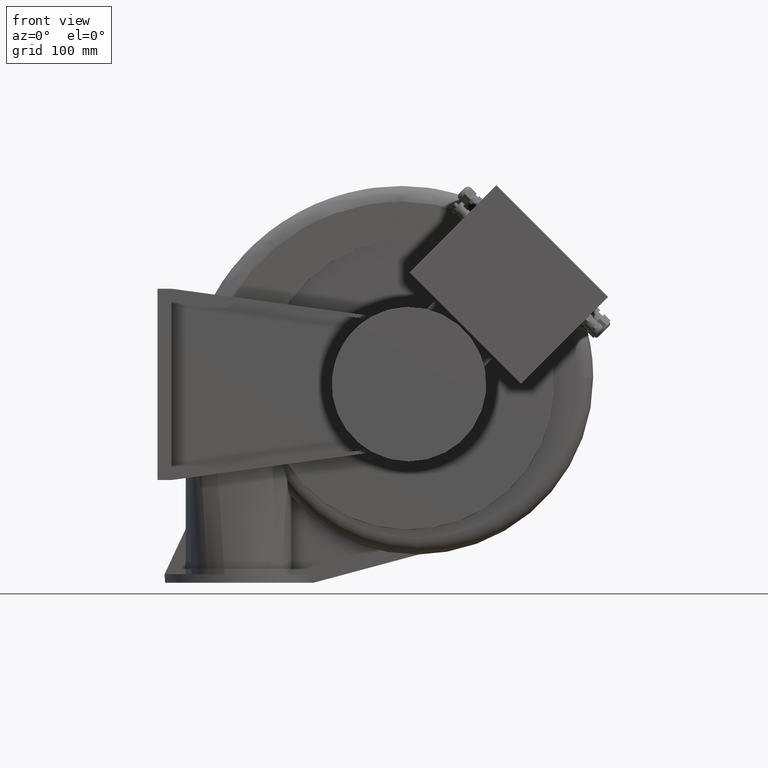
[diagram: clean part render]
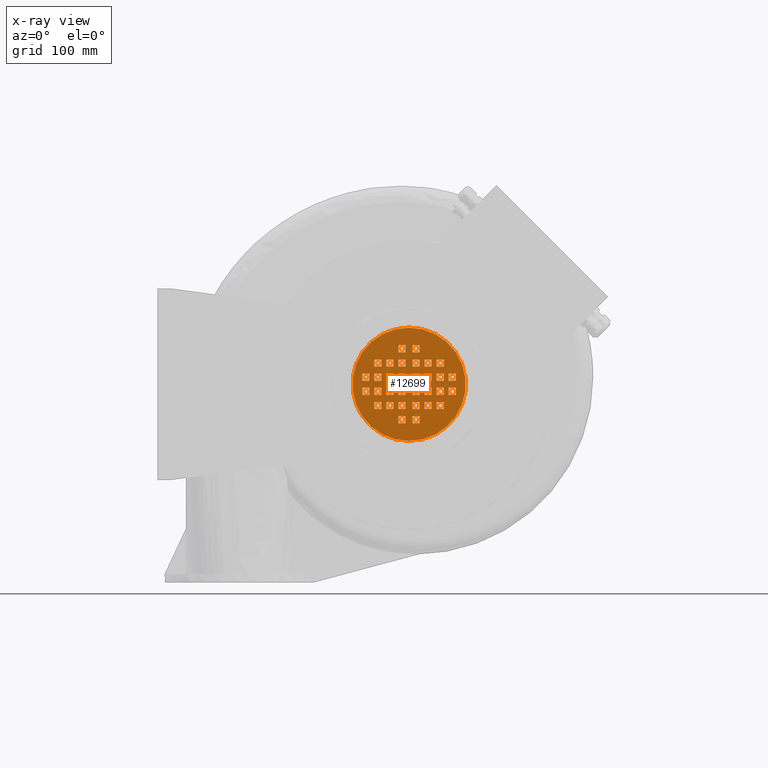
[diagram: x-ray — body ghosted, one internal face saturated and labeled with its STEP entity id]
A machine part, front view, then the same camera in x-ray: the body is ghosted and one INTERNAL B-rep face — a face not visible from any outside direction — is saturated and labeled: STEP entity #12699.
In plain terms, the highlighted planar face has unit normal (0, -1, 0).
Its self-contained STEP definition (entity closure, byte-faithful):
#11588=CARTESIAN_POINT('',(354.99999999999858,234.50000000000023,-54.99999999999973));
#11589=VERTEX_POINT('',#11588);
#11590=CARTESIAN_POINT('',(354.99999999999858,234.5000000000002,-134.99999999999972));
#11591=DIRECTION('',(0.0,1.0,0.0));
#11592=DIRECTION('',(0.0,0.0,-1.0));
#11593=AXIS2_PLACEMENT_3D('',#11590,#11591,#11592);
#11594=CIRCLE('',#11593,80.0);
#11595=EDGE_CURVE('',#11589,#11589,#11594,.T.);
#11603=CARTESIAN_POINT('',(354.99999999999858,234.5000000000002,-134.99999999999972));
#11604=DIRECTION('',(0.0,-1.0,0.0));
#11605=DIRECTION('',(0.0,0.0,-1.0));
#11606=AXIS2_PLACEMENT_3D('',#11603,#11604,#11605);
#11607=PLANE('',#11606);
#11608=ORIENTED_EDGE('',*,*,#11595,.F.);
#11609=EDGE_LOOP('',(#11608));
#11610=FACE_OUTER_BOUND('',#11609,.T.);
#11611=CARTESIAN_POINT('',(339.99999999999858,234.5000000000002,-99.999999999999787));
#11612=VERTEX_POINT('',#11611);
#11613=CARTESIAN_POINT('',(349.99999999999858,234.5000000000002,-99.999999999999787));
#11614=VERTEX_POINT('',#11613);
#11615=CARTESIAN_POINT('',(339.99999999999858,234.5000000000002,-99.999999999999787));
#11616=DIRECTION('',(1.0,0.0,0.0));
#11617=VECTOR('',#11616,10.0);
#11618=LINE('',#11615,#11617);
#11619=EDGE_CURVE('',#11612,#11614,#11618,.T.);
#11620=ORIENTED_EDGE('',*,*,#11619,.T.);
#11621=CARTESIAN_POINT('',(349.99999999999858,234.5000000000002,-109.99999999999979));
#11622=VERTEX_POINT('',#11621);
#11623=CARTESIAN_POINT('',(349.99999999999858,234.5000000000002,-99.999999999999773));
#11624=DIRECTION('',(0.0,0.0,-1.0));
#11625=VECTOR('',#11624,10.0);
#11626=LINE('',#11623,#11625);
#11627=EDGE_CURVE('',#11614,#11622,#11626,.T.);
#11628=ORIENTED_EDGE('',*,*,#11627,.T.);
#11629=CARTESIAN_POINT('',(339.99999999999858,234.5000000000002,-109.99999999999979));
#11630=VERTEX_POINT('',#11629);
#11631=CARTESIAN_POINT('',(349.99999999999858,234.5000000000002,-109.99999999999979));
#11632=DIRECTION('',(-1.0,0.0,0.0));
#11633=VECTOR('',#11632,10.0);
#11634=LINE('',#11631,#11633);
#11635=EDGE_CURVE('',#11622,#11630,#11634,.T.);
#11636=ORIENTED_EDGE('',*,*,#11635,.T.);
#11637=CARTESIAN_POINT('',(339.99999999999858,234.5000000000002,-109.99999999999977));
#11638=DIRECTION('',(0.0,0.0,1.0));
#11639=VECTOR('',#11638,10.0);
#11640=LINE('',#11637,#11639);
#11641=EDGE_CURVE('',#11630,#11612,#11640,.T.);
#11642=ORIENTED_EDGE('',*,*,#11641,.T.);
#11643=EDGE_LOOP('',(#11620,#11628,#11636,#11642));
#11644=FACE_BOUND('',#11643,.T.);
#11645=CARTESIAN_POINT('',(305.99999999999858,234.50000000000017,-119.9999999999998));
#11646=VERTEX_POINT('',#11645);
#11647=CARTESIAN_POINT('',(315.99999999999858,234.50000000000017,-119.99999999999979));
#11648=VERTEX_POINT('',#11647);
#11649=CARTESIAN_POINT('',(305.99999999999852,234.50000000000017,-119.99999999999979));
#11650=DIRECTION('',(1.0,0.0,0.0));
#11651=VECTOR('',#11650,10.0);
#11652=LINE('',#11649,#11651);
#11653=EDGE_CURVE('',#11646,#11648,#11652,.T.);
#11654=ORIENTED_EDGE('',*,*,#11653,.T.);
#11655=CARTESIAN_POINT('',(315.99999999999858,234.50000000000017,-129.99999999999977));
#11656=VERTEX_POINT('',#11655);
#11657=CARTESIAN_POINT('',(315.99999999999858,234.50000000000017,-119.99999999999977));
#11658=DIRECTION('',(0.0,0.0,-1.0));
#11659=VECTOR('',#11658,10.0);
#11660=LINE('',#11657,#11659);
#11661=EDGE_CURVE('',#11648,#11656,#11660,.T.);
#11662=ORIENTED_EDGE('',*,*,#11661,.T.);
#11663=CARTESIAN_POINT('',(305.99999999999858,234.50000000000017,-129.9999999999998));
#11664=VERTEX_POINT('',#11663);
#11665=CARTESIAN_POINT('',(315.99999999999852,234.50000000000017,-129.99999999999977));
#11666=DIRECTION('',(-1.0,0.0,0.0));
#11667=VECTOR('',#11666,10.0);
#11668=LINE('',#11665,#11667);
#11669=EDGE_CURVE('',#11656,#11664,#11668,.T.);
#11670=ORIENTED_EDGE('',*,*,#11669,.T.);
#11671=CARTESIAN_POINT('',(305.99999999999858,234.50000000000017,-129.9999999999998));
#11672=DIRECTION('',(0.0,0.0,1.0));
#11673=VECTOR('',#11672,10.0);
#11674=LINE('',#11671,#11673);
#11675=EDGE_CURVE('',#11664,#11646,#11674,.T.);
#11676=ORIENTED_EDGE('',*,*,#11675,.T.);
#11677=EDGE_LOOP('',(#11654,#11662,#11670,#11676));
#11678=FACE_BOUND('',#11677,.T.);
#11679=CARTESIAN_POINT('',(298.99999999999858,234.50000000000017,-129.9999999999998));
#11680=VERTEX_POINT('',#11679);
#11681=CARTESIAN_POINT('',(288.99999999999858,234.50000000000017,-129.9999999999998));
#11682=VERTEX_POINT('',#11681);
#11683=CARTESIAN_POINT('',(298.99999999999864,234.50000000000017,-129.99999999999977));
#11684=DIRECTION('',(-1.0,0.0,0.0));
#11685=VECTOR('',#11684,10.0);
#11686=LINE('',#11683,#11685);
#11687=EDGE_CURVE('',#11680,#11682,#11686,.T.);
#11688=ORIENTED_EDGE('',*,*,#11687,.T.);
#11689=CARTESIAN_POINT('',(288.99999999999858,234.50000000000017,-119.9999999999998));
#11690=VERTEX_POINT('',#11689);
#11691=CARTESIAN_POINT('',(288.99999999999858,234.50000000000017,-129.9999999999998));
#11692=DIRECTION('',(0.0,0.0,1.0));
#11693=VECTOR('',#11692,10.0);
#11694=LINE('',#11691,#11693);
#11695=EDGE_CURVE('',#11682,#11690,#11694,.T.);
#11696=ORIENTED_EDGE('',*,*,#11695,.T.);
#11697=CARTESIAN_POINT('',(298.99999999999858,234.50000000000017,-119.9999999999998));
#11698=VERTEX_POINT('',#11697);
#11699=CARTESIAN_POINT('',(288.99999999999864,234.50000000000014,-119.9999999999998));
#11700=DIRECTION('',(1.0,0.0,0.0));
#11701=VECTOR('',#11700,10.0);
#11702=LINE('',#11699,#11701);
#11703=EDGE_CURVE('',#11690,#11698,#11702,.T.);
#11704=ORIENTED_EDGE('',*,*,#11703,.T.);
#11705=CARTESIAN_POINT('',(298.99999999999858,234.50000000000017,-119.9999999999998));
#11706=DIRECTION('',(0.0,0.0,-1.0));
#11707=VECTOR('',#11706,10.0);
#11708=LINE('',#11705,#11707);
#11709=EDGE_CURVE('',#11698,#11680,#11708,.T.);
#11710=ORIENTED_EDGE('',*,*,#11709,.T.);
#11711=EDGE_LOOP('',(#11688,#11696,#11704,#11710));
#11712=FACE_BOUND('',#11711,.T.);
#11713=CARTESIAN_POINT('',(339.99999999999858,234.5000000000002,-119.99999999999979));
#11714=VERTEX_POINT('',#11713);
#11715=CARTESIAN_POINT('',(349.99999999999858,234.5000000000002,-119.99999999999979));
#11716=VERTEX_POINT('',#11715);
#11717=CARTESIAN_POINT('',(339.99999999999858,234.5000000000002,-119.99999999999979));
#11718=DIRECTION('',(1.0,0.0,0.0));
#11719=VECTOR('',#11718,10.0);
#11720=LINE('',#11717,#11719);
#11721=EDGE_CURVE('',#11714,#11716,#11720,.T.);
#11722=ORIENTED_EDGE('',*,*,#11721,.T.);
#11723=CARTESIAN_POINT('',(349.99999999999858,234.5000000000002,-129.99999999999977));
#11724=VERTEX_POINT('',#11723);
#11725=CARTESIAN_POINT('',(349.99999999999858,234.5000000000002,-119.99999999999977));
#11726=DIRECTION('',(0.0,0.0,-1.0));
#11727=VECTOR('',#11726,10.0);
#11728=LINE('',#11725,#11727);
#11729=EDGE_CURVE('',#11716,#11724,#11728,.T.);
#11730=ORIENTED_EDGE('',*,*,#11729,.T.);
#11731=CARTESIAN_POINT('',(339.99999999999858,234.5000000000002,-129.99999999999977));
#11732=VERTEX_POINT('',#11731);
#11733=CARTESIAN_POINT('',(349.99999999999858,234.5000000000002,-129.99999999999977));
#11734=DIRECTION('',(-1.0,0.0,0.0));
#11735=VECTOR('',#11734,10.0);
#11736=LINE('',#11733,#11735);
#11737=EDGE_CURVE('',#11724,#11732,#11736,.T.);
#11738=ORIENTED_EDGE('',*,*,#11737,.T.);
#11739=CARTESIAN_POINT('',(339.99999999999858,234.5000000000002,-129.99999999999977));
#11740=DIRECTION('',(0.0,0.0,1.0));
#11741=VECTOR('',#11740,10.0);
#11742=LINE('',#11739,#11741);
#11743=EDGE_CURVE('',#11732,#11714,#11742,.T.);
#11744=ORIENTED_EDGE('',*,*,#11743,.T.);
#11745=EDGE_LOOP('',(#11722,#11730,#11738,#11744));
#11746=FACE_BOUND('',#11745,.T.);
#11747=CARTESIAN_POINT('',(305.99999999999858,234.50000000000017,-99.999999999999787));
#11748=VERTEX_POINT('',#11747);
#11749=CARTESIAN_POINT('',(315.99999999999858,234.50000000000017,-99.999999999999787));
#11750=VERTEX_POINT('',#11749);
#11751=CARTESIAN_POINT('',(305.99999999999852,234.50000000000017,-99.999999999999787));
#11752=DIRECTION('',(1.0,0.0,0.0));
#11753=VECTOR('',#11752,10.0);
#11754=LINE('',#11751,#11753);
#11755=EDGE_CURVE('',#11748,#11750,#11754,.T.);
#11756=ORIENTED_EDGE('',*,*,#11755,.T.);
#11757=CARTESIAN_POINT('',(315.99999999999858,234.50000000000017,-109.99999999999979));
#11758=VERTEX_POINT('',#11757);
#11759=CARTESIAN_POINT('',(315.99999999999858,234.50000000000017,-99.999999999999801));
#11760=DIRECTION('',(0.0,0.0,-1.0));
#11761=VECTOR('',#11760,10.0);
#11762=LINE('',#11759,#11761);
#11763=EDGE_CURVE('',#11750,#11758,#11762,.T.);
#11764=ORIENTED_EDGE('',*,*,#11763,.T.);
#11765=CARTESIAN_POINT('',(305.99999999999858,234.50000000000017,-109.99999999999979));
#11766=VERTEX_POINT('',#11765);
#11767=CARTESIAN_POINT('',(315.99999999999852,234.50000000000017,-109.99999999999979));
#11768=DIRECTION('',(-1.0,0.0,0.0));
#11769=VECTOR('',#11768,10.0);
#11770=LINE('',#11767,#11769);
#11771=EDGE_CURVE('',#11758,#11766,#11770,.T.);
#11772=ORIENTED_EDGE('',*,*,#11771,.T.);
#11773=CARTESIAN_POINT('',(305.99999999999858,234.50000000000017,-109.9999999999998));
#11774=DIRECTION('',(0.0,0.0,1.0));
#11775=VECTOR('',#11774,10.0);
#11776=LINE('',#11773,#11775);
#11777=EDGE_CURVE('',#11766,#11748,#11776,.T.);
#11778=ORIENTED_EDGE('',*,*,#11777,.T.);
#11779=EDGE_LOOP('',(#11756,#11764,#11772,#11778));
#11780=FACE_BOUND('',#11779,.T.);
#11781=CARTESIAN_POINT('',(322.99999999999852,234.5000000000002,-99.999999999999787));
#11782=VERTEX_POINT('',#11781);
#11783=CARTESIAN_POINT('',(332.99999999999852,234.5000000000002,-99.999999999999787));
#11784=VERTEX_POINT('',#11783);
#11785=CARTESIAN_POINT('',(322.99999999999858,234.5000000000002,-99.999999999999787));
#11786=DIRECTION('',(1.0,0.0,0.0));
#11787=VECTOR('',#11786,10.0);
#11788=LINE('',#11785,#11787);
#11789=EDGE_CURVE('',#11782,#11784,#11788,.T.);
#11790=ORIENTED_EDGE('',*,*,#11789,.T.);
#11791=CARTESIAN_POINT('',(332.99999999999852,234.5000000000002,-109.99999999999979));
#11792=VERTEX_POINT('',#11791);
#11793=CARTESIAN_POINT('',(332.99999999999852,234.5000000000002,-99.999999999999773));
#11794=DIRECTION('',(0.0,0.0,-1.0));
#11795=VECTOR('',#11794,10.0);
#11796=LINE('',#11793,#11795);
#11797=EDGE_CURVE('',#11784,#11792,#11796,.T.);
#11798=ORIENTED_EDGE('',*,*,#11797,.T.);
#11799=CARTESIAN_POINT('',(322.99999999999852,234.5000000000002,-109.99999999999979));
#11800=VERTEX_POINT('',#11799);
#11801=CARTESIAN_POINT('',(332.99999999999858,234.5000000000002,-109.99999999999979));
#11802=DIRECTION('',(-1.0,0.0,0.0));
#11803=VECTOR('',#11802,10.0);
#11804=LINE('',#11801,#11803);
#11805=EDGE_CURVE('',#11792,#11800,#11804,.T.);
#11806=ORIENTED_EDGE('',*,*,#11805,.T.);
#11807=CARTESIAN_POINT('',(322.99999999999852,234.50000000000017,-109.99999999999977));
#11808=DIRECTION('',(0.0,0.0,1.0));
#11809=VECTOR('',#11808,10.0);
#11810=LINE('',#11807,#11809);
#11811=EDGE_CURVE('',#11800,#11782,#11810,.T.);
#11812=ORIENTED_EDGE('',*,*,#11811,.T.);
#11813=EDGE_LOOP('',(#11790,#11798,#11806,#11812));
#11814=FACE_BOUND('',#11813,.T.);
#11815=CARTESIAN_POINT('',(322.99999999999852,234.5000000000002,-119.99999999999979));
#11816=VERTEX_POINT('',#11815);
#11817=CARTESIAN_POINT('',(332.99999999999852,234.5000000000002,-119.99999999999979));
#11818=VERTEX_POINT('',#11817);
#11819=CARTESIAN_POINT('',(322.99999999999858,234.5000000000002,-119.99999999999979));
#11820=DIRECTION('',(1.0,0.0,0.0));
#11821=VECTOR('',#11820,10.0);
#11822=LINE('',#11819,#11821);
#11823=EDGE_CURVE('',#11816,#11818,#11822,.T.);
#11824=ORIENTED_EDGE('',*,*,#11823,.T.);
#11825=CARTESIAN_POINT('',(332.99999999999852,234.5000000000002,-129.99999999999977));
#11826=VERTEX_POINT('',#11825);
#11827=CARTESIAN_POINT('',(332.99999999999852,234.5000000000002,-119.99999999999977));
#11828=DIRECTION('',(0.0,0.0,-1.0));
#11829=VECTOR('',#11828,10.0);
#11830=LINE('',#11827,#11829);
#11831=EDGE_CURVE('',#11818,#11826,#11830,.T.);
#11832=ORIENTED_EDGE('',*,*,#11831,.T.);
#11833=CARTESIAN_POINT('',(322.99999999999852,234.50000000000017,-129.99999999999977));
#11834=VERTEX_POINT('',#11833);
#11835=CARTESIAN_POINT('',(332.99999999999858,234.5000000000002,-129.99999999999977));
#11836=DIRECTION('',(-1.0,0.0,0.0));
#11837=VECTOR('',#11836,10.0);
#11838=LINE('',#11835,#11837);
#11839=EDGE_CURVE('',#11826,#11834,#11838,.T.);
#11840=ORIENTED_EDGE('',*,*,#11839,.T.);
#11841=CARTESIAN_POINT('',(322.99999999999852,234.50000000000017,-129.99999999999977));
#11842=DIRECTION('',(0.0,0.0,1.0));
#11843=VECTOR('',#11842,10.0);
#11844=LINE('',#11841,#11843);
#11845=EDGE_CURVE('',#11834,#11816,#11844,.T.);
#11846=ORIENTED_EDGE('',*,*,#11845,.T.);
#11847=EDGE_LOOP('',(#11824,#11832,#11840,#11846));
#11848=FACE_BOUND('',#11847,.T.);
#11849=CARTESIAN_POINT('',(339.99999999999858,234.5000000000002,-79.999999999999801));
#11850=VERTEX_POINT('',#11849);
#11851=CARTESIAN_POINT('',(349.99999999999858,234.50000000000023,-79.999999999999801));
#11852=VERTEX_POINT('',#11851);
#11853=CARTESIAN_POINT('',(339.99999999999858,234.5000000000002,-79.999999999999801));
#11854=DIRECTION('',(1.0,0.0,0.0));
#11855=VECTOR('',#11854,10.0);
#11856=LINE('',#11853,#11855);
#11857=EDGE_CURVE('',#11850,#11852,#11856,.T.);
#11858=ORIENTED_EDGE('',*,*,#11857,.T.);
#11859=CARTESIAN_POINT('',(349.99999999999858,234.5000000000002,-89.999999999999787));
#11860=VERTEX_POINT('',#11859);
#11861=CARTESIAN_POINT('',(349.99999999999858,234.5000000000002,-79.999999999999773));
#11862=DIRECTION('',(0.0,0.0,-1.0));
#11863=VECTOR('',#11862,10.0);
#11864=LINE('',#11861,#11863);
#11865=EDGE_CURVE('',#11852,#11860,#11864,.T.);
#11866=ORIENTED_EDGE('',*,*,#11865,.T.);
#11867=CARTESIAN_POINT('',(339.99999999999858,234.5000000000002,-89.999999999999787));
#11868=VERTEX_POINT('',#11867);
#11869=CARTESIAN_POINT('',(349.99999999999858,234.50000000000023,-89.999999999999787));
#11870=DIRECTION('',(-1.0,0.0,0.0));
#11871=VECTOR('',#11870,10.0);
#11872=LINE('',#11869,#11871);
#11873=EDGE_CURVE('',#11860,#11868,#11872,.T.);
#11874=ORIENTED_EDGE('',*,*,#11873,.T.);
#11875=CARTESIAN_POINT('',(339.99999999999858,234.5000000000002,-89.999999999999773));
#11876=DIRECTION('',(0.0,0.0,1.0));
#11877=VECTOR('',#11876,10.0);
#11878=LINE('',#11875,#11877);
#11879=EDGE_CURVE('',#11868,#11850,#11878,.T.);
#11880=ORIENTED_EDGE('',*,*,#11879,.T.);
#11881=EDGE_LOOP('',(#11858,#11866,#11874,#11880));
#11882=FACE_BOUND('',#11881,.T.);
#11883=CARTESIAN_POINT('',(349.99999999999858,234.5000000000002,-169.99999999999972));
#11884=VERTEX_POINT('',#11883);
#11885=CARTESIAN_POINT('',(339.99999999999858,234.5000000000002,-169.99999999999972));
#11886=VERTEX_POINT('',#11885);
#11887=CARTESIAN_POINT('',(349.99999999999858,234.5000000000002,-169.99999999999972));
#11888=DIRECTION('',(-1.0,0.0,0.0));
#11889=VECTOR('',#11888,10.0);
#11890=LINE('',#11887,#11889);
#11891=EDGE_CURVE('',#11884,#11886,#11890,.T.);
#11892=ORIENTED_EDGE('',*,*,#11891,.T.);
#11893=CARTESIAN_POINT('',(339.99999999999858,234.5000000000002,-159.99999999999974));
#11894=VERTEX_POINT('',#11893);
#11895=CARTESIAN_POINT('',(339.99999999999858,234.5000000000002,-169.99999999999972));
#11896=DIRECTION('',(0.0,0.0,1.0));
#11897=VECTOR('',#11896,10.0);
#11898=LINE('',#11895,#11897);
#11899=EDGE_CURVE('',#11886,#11894,#11898,.T.);
#11900=ORIENTED_EDGE('',*,*,#11899,.T.);
#11901=CARTESIAN_POINT('',(349.99999999999858,234.5000000000002,-159.99999999999974));
#11902=VERTEX_POINT('',#11901);
#11903=CARTESIAN_POINT('',(339.99999999999858,234.5000000000002,-159.99999999999974));
#11904=DIRECTION('',(1.0,0.0,0.0));
#11905=VECTOR('',#11904,10.0);
#11906=LINE('',#11903,#11905);
#11907=EDGE_CURVE('',#11894,#11902,#11906,.T.);
#11908=ORIENTED_EDGE('',*,*,#11907,.T.);
#11909=CARTESIAN_POINT('',(349.99999999999858,234.5000000000002,-159.99999999999974));
#11910=DIRECTION('',(0.0,0.0,-1.0));
#11911=VECTOR('',#11910,10.0);
#11912=LINE('',#11909,#11911);
#11913=EDGE_CURVE('',#11902,#11884,#11912,.T.);
#11914=ORIENTED_EDGE('',*,*,#11913,.T.);
#11915=EDGE_LOOP('',(#11892,#11900,#11908,#11914));
#11916=FACE_BOUND('',#11915,.T.);
#11917=CARTESIAN_POINT('',(315.99999999999858,234.50000000000017,-149.99999999999974));
#11918=VERTEX_POINT('',#11917);
#11919=CARTESIAN_POINT('',(305.99999999999858,234.50000000000017,-149.99999999999974));
#11920=VERTEX_POINT('',#11919);
#11921=CARTESIAN_POINT('',(315.99999999999852,234.5000000000002,-149.99999999999974));
#11922=DIRECTION('',(-1.0,0.0,0.0));
#11923=VECTOR('',#11922,10.0);
#11924=LINE('',#11921,#11923);
#11925=EDGE_CURVE('',#11918,#11920,#11924,.T.);
#11926=ORIENTED_EDGE('',*,*,#11925,.T.);
#11927=CARTESIAN_POINT('',(305.99999999999858,234.50000000000017,-139.99999999999974));
#11928=VERTEX_POINT('',#11927);
#11929=CARTESIAN_POINT('',(305.99999999999858,234.50000000000017,-149.99999999999974));
#11930=DIRECTION('',(0.0,0.0,1.0));
#11931=VECTOR('',#11930,10.0);
#11932=LINE('',#11929,#11931);
#11933=EDGE_CURVE('',#11920,#11928,#11932,.T.);
#11934=ORIENTED_EDGE('',*,*,#11933,.T.);
#11935=CARTESIAN_POINT('',(315.99999999999858,234.50000000000017,-139.99999999999974));
#11936=VERTEX_POINT('',#11935);
#11937=CARTESIAN_POINT('',(305.99999999999852,234.50000000000017,-139.99999999999972));
#11938=DIRECTION('',(1.0,0.0,0.0));
#11939=VECTOR('',#11938,10.0);
#11940=LINE('',#11937,#11939);
#11941=EDGE_CURVE('',#11928,#11936,#11940,.T.);
#11942=ORIENTED_EDGE('',*,*,#11941,.T.);
#11943=CARTESIAN_POINT('',(315.99999999999858,234.50000000000017,-139.99999999999974));
#11944=DIRECTION('',(0.0,0.0,-1.0));
#11945=VECTOR('',#11944,10.0);
#11946=LINE('',#11943,#11945);
#11947=EDGE_CURVE('',#11936,#11918,#11946,.T.);
#11948=ORIENTED_EDGE('',*,*,#11947,.T.);
#11949=EDGE_LOOP('',(#11926,#11934,#11942,#11948));
#11950=FACE_BOUND('',#11949,.T.);
#11951=CARTESIAN_POINT('',(288.99999999999858,234.50000000000017,-139.99999999999974));
#11952=VERTEX_POINT('',#11951);
#11953=CARTESIAN_POINT('',(298.99999999999858,234.50000000000017,-139.99999999999974));
#11954=VERTEX_POINT('',#11953);
#11955=CARTESIAN_POINT('',(288.99999999999864,234.50000000000017,-139.99999999999972));
#11956=DIRECTION('',(1.0,0.0,0.0));
#11957=VECTOR('',#11956,10.0);
#11958=LINE('',#11955,#11957);
#11959=EDGE_CURVE('',#11952,#11954,#11958,.T.);
#11960=ORIENTED_EDGE('',*,*,#11959,.T.);
#11961=CARTESIAN_POINT('',(298.99999999999858,234.50000000000017,-149.99999999999974));
#11962=VERTEX_POINT('',#11961);
#11963=CARTESIAN_POINT('',(298.99999999999858,234.50000000000017,-139.99999999999974));
#11964=DIRECTION('',(0.0,0.0,-1.0));
#11965=VECTOR('',#11964,10.0);
#11966=LINE('',#11963,#11965);
#11967=EDGE_CURVE('',#11954,#11962,#11966,.T.);
#11968=ORIENTED_EDGE('',*,*,#11967,.T.);
#11969=CARTESIAN_POINT('',(288.99999999999858,234.50000000000017,-149.99999999999974));
#11970=VERTEX_POINT('',#11969);
#11971=CARTESIAN_POINT('',(298.99999999999864,234.50000000000014,-149.99999999999972));
#11972=DIRECTION('',(-1.0,0.0,0.0));
#11973=VECTOR('',#11972,10.0);
#11974=LINE('',#11971,#11973);
#11975=EDGE_CURVE('',#11962,#11970,#11974,.T.);
#11976=ORIENTED_EDGE('',*,*,#11975,.T.);
#11977=CARTESIAN_POINT('',(288.99999999999858,234.50000000000017,-149.99999999999974));
#11978=DIRECTION('',(0.0,0.0,1.0));
#11979=VECTOR('',#11978,10.0);
#11980=LINE('',#11977,#11979);
#11981=EDGE_CURVE('',#11970,#11952,#11980,.T.);
#11982=ORIENTED_EDGE('',*,*,#11981,.T.);
#11983=EDGE_LOOP('',(#11960,#11968,#11976,#11982));
#11984=FACE_BOUND('',#11983,.T.);
#11985=CARTESIAN_POINT('',(349.99999999999858,234.5000000000002,-149.99999999999974));
#11986=VERTEX_POINT('',#11985);
#11987=CARTESIAN_POINT('',(339.99999999999858,234.5000000000002,-149.99999999999974));
#11988=VERTEX_POINT('',#11987);
#11989=CARTESIAN_POINT('',(349.99999999999858,234.5000000000002,-149.99999999999974));
#11990=DIRECTION('',(-1.0,0.0,0.0));
#11991=VECTOR('',#11990,10.0);
#11992=LINE('',#11989,#11991);
#11993=EDGE_CURVE('',#11986,#11988,#11992,.T.);
#11994=ORIENTED_EDGE('',*,*,#11993,.T.);
#11995=CARTESIAN_POINT('',(339.99999999999858,234.5000000000002,-139.99999999999972));
#11996=VERTEX_POINT('',#11995);
#11997=CARTESIAN_POINT('',(339.99999999999858,234.5000000000002,-149.99999999999972));
#11998=DIRECTION('',(0.0,0.0,1.0));
#11999=VECTOR('',#11998,10.0);
#12000=LINE('',#11997,#11999);
#12001=EDGE_CURVE('',#11988,#11996,#12000,.T.);
#12002=ORIENTED_EDGE('',*,*,#12001,.T.);
#12003=CARTESIAN_POINT('',(349.99999999999858,234.5000000000002,-139.99999999999972));
#12004=VERTEX_POINT('',#12003);
#12005=CARTESIAN_POINT('',(339.99999999999858,234.5000000000002,-139.99999999999972));
#12006=DIRECTION('',(1.0,0.0,0.0));
#12007=VECTOR('',#12006,10.0);
#12008=LINE('',#12005,#12007);
#12009=EDGE_CURVE('',#11996,#12004,#12008,.T.);
#12010=ORIENTED_EDGE('',*,*,#12009,.T.);
#12011=CARTESIAN_POINT('',(349.99999999999858,234.5000000000002,-139.99999999999972));
#12012=DIRECTION('',(0.0,0.0,-1.0));
#12013=VECTOR('',#12012,10.0);
#12014=LINE('',#12011,#12013);
#12015=EDGE_CURVE('',#12004,#11986,#12014,.T.);
#12016=ORIENTED_EDGE('',*,*,#12015,.T.);
#12017=EDGE_LOOP('',(#11994,#12002,#12010,#12016));
#12018=FACE_BOUND('',#12017,.T.);
#12019=CARTESIAN_POINT('',(315.99999999999858,234.50000000000017,-169.99999999999972));
#12020=VERTEX_POINT('',#12019);
#12021=CARTESIAN_POINT('',(305.99999999999858,234.50000000000017,-169.99999999999972));
#12022=VERTEX_POINT('',#12021);
#12023=CARTESIAN_POINT('',(315.99999999999864,234.5000000000002,-169.99999999999972));
#12024=DIRECTION('',(-1.0,0.0,0.0));
#12025=VECTOR('',#12024,10.0);
#12026=LINE('',#12023,#12025);
#12027=EDGE_CURVE('',#12020,#12022,#12026,.T.);
#12028=ORIENTED_EDGE('',*,*,#12027,.T.);
#12029=CARTESIAN_POINT('',(305.99999999999858,234.50000000000017,-159.99999999999974));
#12030=VERTEX_POINT('',#12029);
#12031=CARTESIAN_POINT('',(305.99999999999858,234.50000000000017,-169.99999999999974));
#12032=DIRECTION('',(0.0,0.0,1.0));
#12033=VECTOR('',#12032,10.0);
#12034=LINE('',#12031,#12033);
#12035=EDGE_CURVE('',#12022,#12030,#12034,.T.);
#12036=ORIENTED_EDGE('',*,*,#12035,.T.);
#12037=CARTESIAN_POINT('',(315.99999999999858,234.50000000000017,-159.99999999999974));
#12038=VERTEX_POINT('',#12037);
#12039=CARTESIAN_POINT('',(305.99999999999852,234.50000000000017,-159.99999999999974));
#12040=DIRECTION('',(1.0,0.0,0.0));
#12041=VECTOR('',#12040,10.0);
#12042=LINE('',#12039,#12041);
#12043=EDGE_CURVE('',#12030,#12038,#12042,.T.);
#12044=ORIENTED_EDGE('',*,*,#12043,.T.);
#12045=CARTESIAN_POINT('',(315.99999999999858,234.50000000000017,-159.99999999999972));
#12046=DIRECTION('',(0.0,0.0,-1.0));
#12047=VECTOR('',#12046,10.0);
#12048=LINE('',#12045,#12047);
#12049=EDGE_CURVE('',#12038,#12020,#12048,.T.);
#12050=ORIENTED_EDGE('',*,*,#12049,.T.);
#12051=EDGE_LOOP('',(#12028,#12036,#12044,#12050));
#12052=FACE_BOUND('',#12051,.T.);
#12053=CARTESIAN_POINT('',(332.99999999999852,234.5000000000002,-169.99999999999972));
#12054=VERTEX_POINT('',#12053);
#12055=CARTESIAN_POINT('',(322.99999999999852,234.50000000000017,-169.99999999999972));
#12056=VERTEX_POINT('',#12055);
#12057=CARTESIAN_POINT('',(332.99999999999858,234.5000000000002,-169.99999999999972));
#12058=DIRECTION('',(-1.0,0.0,0.0));
#12059=VECTOR('',#12058,10.0);
#12060=LINE('',#12057,#12059);
#12061=EDGE_CURVE('',#12054,#12056,#12060,.T.);
#12062=ORIENTED_EDGE('',*,*,#12061,.T.);
#12063=CARTESIAN_POINT('',(322.99999999999852,234.50000000000017,-159.99999999999974));
#12064=VERTEX_POINT('',#12063);
#12065=CARTESIAN_POINT('',(322.99999999999852,234.50000000000017,-169.99999999999974));
#12066=DIRECTION('',(0.0,0.0,1.0));
#12067=VECTOR('',#12066,10.0);
#12068=LINE('',#12065,#12067);
#12069=EDGE_CURVE('',#12056,#12064,#12068,.T.);
#12070=ORIENTED_EDGE('',*,*,#12069,.T.);
#12071=CARTESIAN_POINT('',(332.99999999999852,234.5000000000002,-159.99999999999974));
#12072=VERTEX_POINT('',#12071);
#12073=CARTESIAN_POINT('',(322.99999999999858,234.50000000000017,-159.99999999999974));
#12074=DIRECTION('',(1.0,0.0,0.0));
#12075=VECTOR('',#12074,10.0);
#12076=LINE('',#12073,#12075);
#12077=EDGE_CURVE('',#12064,#12072,#12076,.T.);
#12078=ORIENTED_EDGE('',*,*,#12077,.T.);
#12079=CARTESIAN_POINT('',(332.99999999999852,234.5000000000002,-159.99999999999974));
#12080=DIRECTION('',(0.0,0.0,-1.0));
#12081=VECTOR('',#12080,10.0);
#12082=LINE('',#12079,#12081);
#12083=EDGE_CURVE('',#12072,#12054,#12082,.T.);
#12084=ORIENTED_EDGE('',*,*,#12083,.T.);
#12085=EDGE_LOOP('',(#12062,#12070,#12078,#12084));
#12086=FACE_BOUND('',#12085,.T.);
#12087=CARTESIAN_POINT('',(332.99999999999852,234.5000000000002,-149.99999999999974));
#12088=VERTEX_POINT('',#12087);
#12089=CARTESIAN_POINT('',(322.99999999999852,234.50000000000017,-149.99999999999974));
#12090=VERTEX_POINT('',#12089);
#12091=CARTESIAN_POINT('',(332.99999999999858,234.5000000000002,-149.99999999999974));
#12092=DIRECTION('',(-1.0,0.0,0.0));
#12093=VECTOR('',#12092,10.0);
#12094=LINE('',#12091,#12093);
#12095=EDGE_CURVE('',#12088,#12090,#12094,.T.);
#12096=ORIENTED_EDGE('',*,*,#12095,.T.);
#12097=CARTESIAN_POINT('',(322.99999999999852,234.50000000000017,-139.99999999999974));
#12098=VERTEX_POINT('',#12097);
#12099=CARTESIAN_POINT('',(322.99999999999852,234.50000000000017,-149.99999999999972));
#12100=DIRECTION('',(0.0,0.0,1.0));
#12101=VECTOR('',#12100,10.0);
#12102=LINE('',#12099,#12101);
#12103=EDGE_CURVE('',#12090,#12098,#12102,.T.);
#12104=ORIENTED_EDGE('',*,*,#12103,.T.);
#12105=CARTESIAN_POINT('',(332.99999999999852,234.5000000000002,-139.99999999999972));
#12106=VERTEX_POINT('',#12105);
#12107=CARTESIAN_POINT('',(322.99999999999858,234.50000000000017,-139.99999999999972));
#12108=DIRECTION('',(1.0,0.0,0.0));
#12109=VECTOR('',#12108,10.0);
#12110=LINE('',#12107,#12109);
#12111=EDGE_CURVE('',#12098,#12106,#12110,.T.);
#12112=ORIENTED_EDGE('',*,*,#12111,.T.);
#12113=CARTESIAN_POINT('',(332.99999999999852,234.5000000000002,-139.99999999999972));
#12114=DIRECTION('',(0.0,0.0,-1.0));
#12115=VECTOR('',#12114,10.0);
#12116=LINE('',#12113,#12115);
#12117=EDGE_CURVE('',#12106,#12088,#12116,.T.);
#12118=ORIENTED_EDGE('',*,*,#12117,.T.);
#12119=EDGE_LOOP('',(#12096,#12104,#12112,#12118));
#12120=FACE_BOUND('',#12119,.T.);
#12121=CARTESIAN_POINT('',(349.99999999999858,234.5000000000002,-189.99999999999972));
#12122=VERTEX_POINT('',#12121);
#12123=CARTESIAN_POINT('',(339.99999999999858,234.5000000000002,-189.99999999999972));
#12124=VERTEX_POINT('',#12123);
#12125=CARTESIAN_POINT('',(349.99999999999858,234.5000000000002,-189.99999999999972));
#12126=DIRECTION('',(-1.0,0.0,0.0));
#12127=VECTOR('',#12126,10.0);
#12128=LINE('',#12125,#12127);
#12129=EDGE_CURVE('',#12122,#12124,#12128,.T.);
#12130=ORIENTED_EDGE('',*,*,#12129,.T.);
#12131=CARTESIAN_POINT('',(339.99999999999858,234.5000000000002,-179.99999999999972));
#12132=VERTEX_POINT('',#12131);
#12133=CARTESIAN_POINT('',(339.99999999999858,234.5000000000002,-189.99999999999974));
#12134=DIRECTION('',(0.0,0.0,1.0));
#12135=VECTOR('',#12134,10.0);
#12136=LINE('',#12133,#12135);
#12137=EDGE_CURVE('',#12124,#12132,#12136,.T.);
#12138=ORIENTED_EDGE('',*,*,#12137,.T.);
#12139=CARTESIAN_POINT('',(349.99999999999858,234.5000000000002,-179.99999999999972));
#12140=VERTEX_POINT('',#12139);
#12141=CARTESIAN_POINT('',(339.99999999999858,234.5000000000002,-179.99999999999972));
#12142=DIRECTION('',(1.0,0.0,0.0));
#12143=VECTOR('',#12142,10.0);
#12144=LINE('',#12141,#12143);
#12145=EDGE_CURVE('',#12132,#12140,#12144,.T.);
#12146=ORIENTED_EDGE('',*,*,#12145,.T.);
#12147=CARTESIAN_POINT('',(349.99999999999858,234.5000000000002,-179.99999999999972));
#12148=DIRECTION('',(0.0,0.0,-1.0));
#12149=VECTOR('',#12148,10.0);
#12150=LINE('',#12147,#12149);
#12151=EDGE_CURVE('',#12140,#12122,#12150,.T.);
#12152=ORIENTED_EDGE('',*,*,#12151,.T.);
#12153=EDGE_LOOP('',(#12130,#12138,#12146,#12152));
#12154=FACE_BOUND('',#12153,.T.);
#12155=CARTESIAN_POINT('',(359.99999999999858,234.50000000000023,-99.999999999999787));
#12156=VERTEX_POINT('',#12155);
#12157=CARTESIAN_POINT('',(369.99999999999858,234.50000000000023,-99.999999999999787));
#12158=VERTEX_POINT('',#12157);
#12159=CARTESIAN_POINT('',(359.99999999999858,234.50000000000023,-99.999999999999787));
#12160=DIRECTION('',(1.0,0.0,0.0));
#12161=VECTOR('',#12160,10.0);
#12162=LINE('',#12159,#12161);
#12163=EDGE_CURVE('',#12156,#12158,#12162,.T.);
#12164=ORIENTED_EDGE('',*,*,#12163,.T.);
#12165=CARTESIAN_POINT('',(369.99999999999858,234.50000000000023,-109.99999999999979));
#12166=VERTEX_POINT('',#12165);
#12167=CARTESIAN_POINT('',(369.99999999999858,234.50000000000023,-99.999999999999773));
#12168=DIRECTION('',(0.0,0.0,-1.0));
#12169=VECTOR('',#12168,10.0);
#12170=LINE('',#12167,#12169);
#12171=EDGE_CURVE('',#12158,#12166,#12170,.T.);
#12172=ORIENTED_EDGE('',*,*,#12171,.T.);
#12173=CARTESIAN_POINT('',(359.99999999999858,234.50000000000023,-109.99999999999979));
#12174=VERTEX_POINT('',#12173);
#12175=CARTESIAN_POINT('',(369.99999999999858,234.50000000000023,-109.99999999999979));
#12176=DIRECTION('',(-1.0,0.0,0.0));
#12177=VECTOR('',#12176,10.0);
#12178=LINE('',#12175,#12177);
#12179=EDGE_CURVE('',#12166,#12174,#12178,.T.);
#12180=ORIENTED_EDGE('',*,*,#12179,.T.);
#12181=CARTESIAN_POINT('',(359.99999999999858,234.50000000000023,-109.99999999999977));
#12182=DIRECTION('',(0.0,0.0,1.0));
#12183=VECTOR('',#12182,10.0);
#12184=LINE('',#12181,#12183);
#12185=EDGE_CURVE('',#12174,#12156,#12184,.T.);
#12186=ORIENTED_EDGE('',*,*,#12185,.T.);
#12187=EDGE_LOOP('',(#12164,#12172,#12180,#12186));
#12188=FACE_BOUND('',#12187,.T.);
#12189=CARTESIAN_POINT('',(393.99999999999858,234.50000000000023,-119.99999999999979));
#12190=VERTEX_POINT('',#12189);
#12191=CARTESIAN_POINT('',(403.99999999999858,234.50000000000023,-119.99999999999979));
#12192=VERTEX_POINT('',#12191);
#12193=CARTESIAN_POINT('',(393.99999999999864,234.50000000000023,-119.99999999999979));
#12194=DIRECTION('',(1.0,0.0,0.0));
#12195=VECTOR('',#12194,10.0);
#12196=LINE('',#12193,#12195);
#12197=EDGE_CURVE('',#12190,#12192,#12196,.T.);
#12198=ORIENTED_EDGE('',*,*,#12197,.T.);
#12199=CARTESIAN_POINT('',(403.99999999999858,234.50000000000023,-129.99999999999977));
#12200=VERTEX_POINT('',#12199);
#12201=CARTESIAN_POINT('',(403.99999999999858,234.50000000000023,-119.99999999999977));
#12202=DIRECTION('',(0.0,0.0,-1.0));
#12203=VECTOR('',#12202,10.0);
#12204=LINE('',#12201,#12203);
#12205=EDGE_CURVE('',#12192,#12200,#12204,.T.);
#12206=ORIENTED_EDGE('',*,*,#12205,.T.);
#12207=CARTESIAN_POINT('',(393.99999999999858,234.50000000000023,-129.99999999999977));
#12208=VERTEX_POINT('',#12207);
#12209=CARTESIAN_POINT('',(403.99999999999864,234.50000000000026,-129.99999999999977));
#12210=DIRECTION('',(-1.0,0.0,0.0));
#12211=VECTOR('',#12210,10.0);
#12212=LINE('',#12209,#12211);
#12213=EDGE_CURVE('',#12200,#12208,#12212,.T.);
#12214=ORIENTED_EDGE('',*,*,#12213,.T.);
#12215=CARTESIAN_POINT('',(393.99999999999858,234.50000000000023,-129.99999999999977));
#12216=DIRECTION('',(0.0,0.0,1.0));
#12217=VECTOR('',#12216,10.0);
#12218=LINE('',#12215,#12217);
#12219=EDGE_CURVE('',#12208,#12190,#12218,.T.);
#12220=ORIENTED_EDGE('',*,*,#12219,.T.);
#12221=EDGE_LOOP('',(#12198,#12206,#12214,#12220));
#12222=FACE_BOUND('',#12221,.T.);
#12223=CARTESIAN_POINT('',(420.99999999999858,234.50000000000028,-129.99999999999977));
#12224=VERTEX_POINT('',#12223);
#12225=CARTESIAN_POINT('',(410.99999999999858,234.50000000000023,-129.99999999999977));
#12226=VERTEX_POINT('',#12225);
#12227=CARTESIAN_POINT('',(420.99999999999864,234.50000000000026,-129.99999999999977));
#12228=DIRECTION('',(-1.0,0.0,0.0));
#12229=VECTOR('',#12228,10.0);
#12230=LINE('',#12227,#12229);
#12231=EDGE_CURVE('',#12224,#12226,#12230,.T.);
#12232=ORIENTED_EDGE('',*,*,#12231,.T.);
#12233=CARTESIAN_POINT('',(410.99999999999858,234.50000000000028,-119.99999999999979));
#12234=VERTEX_POINT('',#12233);
#12235=CARTESIAN_POINT('',(410.99999999999858,234.50000000000028,-129.99999999999977));
#12236=DIRECTION('',(0.0,0.0,1.0));
#12237=VECTOR('',#12236,10.0);
#12238=LINE('',#12235,#12237);
#12239=EDGE_CURVE('',#12226,#12234,#12238,.T.);
#12240=ORIENTED_EDGE('',*,*,#12239,.T.);
#12241=CARTESIAN_POINT('',(420.99999999999858,234.50000000000028,-119.99999999999979));
#12242=VERTEX_POINT('',#12241);
#12243=CARTESIAN_POINT('',(410.99999999999864,234.50000000000026,-119.9999999999998));
#12244=DIRECTION('',(1.0,0.0,0.0));
#12245=VECTOR('',#12244,10.0);
#12246=LINE('',#12243,#12245);
#12247=EDGE_CURVE('',#12234,#12242,#12246,.T.);
#12248=ORIENTED_EDGE('',*,*,#12247,.T.);
#12249=CARTESIAN_POINT('',(420.99999999999858,234.50000000000028,-119.99999999999977));
#12250=DIRECTION('',(0.0,0.0,-1.0));
#12251=VECTOR('',#12250,10.0);
#12252=LINE('',#12249,#12251);
#12253=EDGE_CURVE('',#12242,#12224,#12252,.T.);
#12254=ORIENTED_EDGE('',*,*,#12253,.T.);
#12255=EDGE_LOOP('',(#12232,#12240,#12248,#12254));
#12256=FACE_BOUND('',#12255,.T.);
#12257=CARTESIAN_POINT('',(359.99999999999858,234.50000000000023,-119.99999999999979));
#12258=VERTEX_POINT('',#12257);
#12259=CARTESIAN_POINT('',(369.99999999999858,234.50000000000023,-119.99999999999979));
#12260=VERTEX_POINT('',#12259);
#12261=CARTESIAN_POINT('',(359.99999999999858,234.50000000000023,-119.99999999999979));
#12262=DIRECTION('',(1.0,0.0,0.0));
#12263=VECTOR('',#12262,10.0);
#12264=LINE('',#12261,#12263);
#12265=EDGE_CURVE('',#12258,#12260,#12264,.T.);
#12266=ORIENTED_EDGE('',*,*,#12265,.T.);
#12267=CARTESIAN_POINT('',(369.99999999999858,234.50000000000023,-129.99999999999977));
#12268=VERTEX_POINT('',#12267);
#12269=CARTESIAN_POINT('',(369.99999999999858,234.50000000000023,-119.99999999999977));
#12270=DIRECTION('',(0.0,0.0,-1.0));
#12271=VECTOR('',#12270,10.0);
#12272=LINE('',#12269,#12271);
#12273=EDGE_CURVE('',#12260,#12268,#12272,.T.);
#12274=ORIENTED_EDGE('',*,*,#12273,.T.);
#12275=CARTESIAN_POINT('',(359.99999999999858,234.50000000000023,-129.99999999999977));
#12276=VERTEX_POINT('',#12275);
#12277=CARTESIAN_POINT('',(369.99999999999858,234.50000000000023,-129.99999999999977));
#12278=DIRECTION('',(-1.0,0.0,0.0));
#12279=VECTOR('',#12278,10.0);
#12280=LINE('',#12277,#12279);
#12281=EDGE_CURVE('',#12268,#12276,#12280,.T.);
#12282=ORIENTED_EDGE('',*,*,#12281,.T.);
#12283=CARTESIAN_POINT('',(359.99999999999858,234.50000000000023,-129.99999999999977));
#12284=DIRECTION('',(0.0,0.0,1.0));
#12285=VECTOR('',#12284,10.0);
#12286=LINE('',#12283,#12285);
#12287=EDGE_CURVE('',#12276,#12258,#12286,.T.);
#12288=ORIENTED_EDGE('',*,*,#12287,.T.);
#12289=EDGE_LOOP('',(#12266,#12274,#12282,#12288));
#12290=FACE_BOUND('',#12289,.T.);
#12291=CARTESIAN_POINT('',(393.99999999999858,234.50000000000023,-99.999999999999787));
#12292=VERTEX_POINT('',#12291);
#12293=CARTESIAN_POINT('',(403.99999999999858,234.50000000000023,-99.999999999999787));
#12294=VERTEX_POINT('',#12293);
#12295=CARTESIAN_POINT('',(393.99999999999864,234.50000000000023,-99.999999999999787));
#12296=DIRECTION('',(1.0,0.0,0.0));
#12297=VECTOR('',#12296,10.0);
#12298=LINE('',#12295,#12297);
#12299=EDGE_CURVE('',#12292,#12294,#12298,.T.);
#12300=ORIENTED_EDGE('',*,*,#12299,.T.);
#12301=CARTESIAN_POINT('',(403.99999999999858,234.50000000000023,-109.99999999999979));
#12302=VERTEX_POINT('',#12301);
#12303=CARTESIAN_POINT('',(403.99999999999858,234.50000000000023,-99.999999999999773));
#12304=DIRECTION('',(0.0,0.0,-1.0));
#12305=VECTOR('',#12304,10.0);
#12306=LINE('',#12303,#12305);
#12307=EDGE_CURVE('',#12294,#12302,#12306,.T.);
#12308=ORIENTED_EDGE('',*,*,#12307,.T.);
#12309=CARTESIAN_POINT('',(393.99999999999858,234.50000000000023,-109.99999999999979));
#12310=VERTEX_POINT('',#12309);
#12311=CARTESIAN_POINT('',(403.99999999999864,234.50000000000026,-109.99999999999979));
#12312=DIRECTION('',(-1.0,0.0,0.0));
#12313=VECTOR('',#12312,10.0);
#12314=LINE('',#12311,#12313);
#12315=EDGE_CURVE('',#12302,#12310,#12314,.T.);
#12316=ORIENTED_EDGE('',*,*,#12315,.T.);
#12317=CARTESIAN_POINT('',(393.99999999999864,234.50000000000023,-109.9999999999998));
#12318=DIRECTION('',(0.0,0.0,1.0));
#12319=VECTOR('',#12318,10.0);
#12320=LINE('',#12317,#12319);
#12321=EDGE_CURVE('',#12310,#12292,#12320,.T.);
#12322=ORIENTED_EDGE('',*,*,#12321,.T.);
#12323=EDGE_LOOP('',(#12300,#12308,#12316,#12322));
#12324=FACE_BOUND('',#12323,.T.);
#12325=CARTESIAN_POINT('',(376.99999999999864,234.50000000000023,-99.999999999999787));
#12326=VERTEX_POINT('',#12325);
#12327=CARTESIAN_POINT('',(386.99999999999864,234.50000000000023,-99.999999999999787));
#12328=VERTEX_POINT('',#12327);
#12329=CARTESIAN_POINT('',(376.99999999999858,234.50000000000023,-99.999999999999787));
#12330=DIRECTION('',(1.0,0.0,0.0));
#12331=VECTOR('',#12330,10.0);
#12332=LINE('',#12329,#12331);
#12333=EDGE_CURVE('',#12326,#12328,#12332,.T.);
#12334=ORIENTED_EDGE('',*,*,#12333,.T.);
#12335=CARTESIAN_POINT('',(386.99999999999864,234.50000000000023,-109.99999999999979));
#12336=VERTEX_POINT('',#12335);
#12337=CARTESIAN_POINT('',(386.99999999999864,234.50000000000023,-99.999999999999773));
#12338=DIRECTION('',(0.0,0.0,-1.0));
#12339=VECTOR('',#12338,10.0);
#12340=LINE('',#12337,#12339);
#12341=EDGE_CURVE('',#12328,#12336,#12340,.T.);
#12342=ORIENTED_EDGE('',*,*,#12341,.T.);
#12343=CARTESIAN_POINT('',(376.99999999999864,234.50000000000023,-109.99999999999979));
#12344=VERTEX_POINT('',#12343);
#12345=CARTESIAN_POINT('',(386.99999999999858,234.50000000000026,-109.99999999999979));
#12346=DIRECTION('',(-1.0,0.0,0.0));
#12347=VECTOR('',#12346,10.0);
#12348=LINE('',#12345,#12347);
#12349=EDGE_CURVE('',#12336,#12344,#12348,.T.);
#12350=ORIENTED_EDGE('',*,*,#12349,.T.);
#12351=CARTESIAN_POINT('',(376.99999999999864,234.50000000000023,-109.99999999999977));
#12352=DIRECTION('',(0.0,0.0,1.0));
#12353=VECTOR('',#12352,10.0);
#12354=LINE('',#12351,#12353);
#12355=EDGE_CURVE('',#12344,#12326,#12354,.T.);
#12356=ORIENTED_EDGE('',*,*,#12355,.T.);
#12357=EDGE_LOOP('',(#12334,#12342,#12350,#12356));
#12358=FACE_BOUND('',#12357,.T.);
#12359=CARTESIAN_POINT('',(376.99999999999864,234.50000000000023,-119.99999999999979));
#12360=VERTEX_POINT('',#12359);
#12361=CARTESIAN_POINT('',(386.99999999999864,234.50000000000023,-119.99999999999979));
#12362=VERTEX_POINT('',#12361);
#12363=CARTESIAN_POINT('',(376.99999999999858,234.50000000000023,-119.99999999999979));
#12364=DIRECTION('',(1.0,0.0,0.0));
#12365=VECTOR('',#12364,10.0);
#12366=LINE('',#12363,#12365);
#12367=EDGE_CURVE('',#12360,#12362,#12366,.T.);
#12368=ORIENTED_EDGE('',*,*,#12367,.T.);
#12369=CARTESIAN_POINT('',(386.99999999999864,234.50000000000023,-129.99999999999977));
#12370=VERTEX_POINT('',#12369);
#12371=CARTESIAN_POINT('',(386.99999999999864,234.50000000000023,-119.99999999999977));
#12372=DIRECTION('',(0.0,0.0,-1.0));
#12373=VECTOR('',#12372,10.0);
#12374=LINE('',#12371,#12373);
#12375=EDGE_CURVE('',#12362,#12370,#12374,.T.);
#12376=ORIENTED_EDGE('',*,*,#12375,.T.);
#12377=CARTESIAN_POINT('',(376.99999999999864,234.50000000000023,-129.99999999999977));
#12378=VERTEX_POINT('',#12377);
#12379=CARTESIAN_POINT('',(386.99999999999858,234.50000000000026,-129.99999999999977));
#12380=DIRECTION('',(-1.0,0.0,0.0));
#12381=VECTOR('',#12380,10.0);
#12382=LINE('',#12379,#12381);
#12383=EDGE_CURVE('',#12370,#12378,#12382,.T.);
#12384=ORIENTED_EDGE('',*,*,#12383,.T.);
#12385=CARTESIAN_POINT('',(376.99999999999864,234.50000000000023,-129.99999999999977));
#12386=DIRECTION('',(0.0,0.0,1.0));
#12387=VECTOR('',#12386,10.0);
#12388=LINE('',#12385,#12387);
#12389=EDGE_CURVE('',#12378,#12360,#12388,.T.);
#12390=ORIENTED_EDGE('',*,*,#12389,.T.);
#12391=EDGE_LOOP('',(#12368,#12376,#12384,#12390));
#12392=FACE_BOUND('',#12391,.T.);
#12393=CARTESIAN_POINT('',(359.99999999999858,234.50000000000023,-79.999999999999801));
#12394=VERTEX_POINT('',#12393);
#12395=CARTESIAN_POINT('',(369.99999999999858,234.50000000000023,-79.999999999999801));
#12396=VERTEX_POINT('',#12395);
#12397=CARTESIAN_POINT('',(359.99999999999858,234.50000000000023,-79.999999999999801));
#12398=DIRECTION('',(1.0,0.0,0.0));
#12399=VECTOR('',#12398,10.0);
#12400=LINE('',#12397,#12399);
#12401=EDGE_CURVE('',#12394,#12396,#12400,.T.);
#12402=ORIENTED_EDGE('',*,*,#12401,.T.);
#12403=CARTESIAN_POINT('',(369.99999999999858,234.50000000000023,-89.999999999999787));
#12404=VERTEX_POINT('',#12403);
#12405=CARTESIAN_POINT('',(369.99999999999858,234.50000000000023,-79.999999999999773));
#12406=DIRECTION('',(0.0,0.0,-1.0));
#12407=VECTOR('',#12406,10.0);
#12408=LINE('',#12405,#12407);
#12409=EDGE_CURVE('',#12396,#12404,#12408,.T.);
#12410=ORIENTED_EDGE('',*,*,#12409,.T.);
#12411=CARTESIAN_POINT('',(359.99999999999858,234.50000000000023,-89.999999999999787));
#12412=VERTEX_POINT('',#12411);
#12413=CARTESIAN_POINT('',(369.99999999999858,234.50000000000023,-89.999999999999787));
#12414=DIRECTION('',(-1.0,0.0,0.0));
#12415=VECTOR('',#12414,10.0);
#12416=LINE('',#12413,#12415);
#12417=EDGE_CURVE('',#12404,#12412,#12416,.T.);
#12418=ORIENTED_EDGE('',*,*,#12417,.T.);
#12419=CARTESIAN_POINT('',(359.99999999999858,234.50000000000023,-89.999999999999773));
#12420=DIRECTION('',(0.0,0.0,1.0));
#12421=VECTOR('',#12420,10.0);
#12422=LINE('',#12419,#12421);
#12423=EDGE_CURVE('',#12412,#12394,#12422,.T.);
#12424=ORIENTED_EDGE('',*,*,#12423,.T.);
#12425=EDGE_LOOP('',(#12402,#12410,#12418,#12424));
#12426=FACE_BOUND('',#12425,.T.);
#12427=CARTESIAN_POINT('',(369.99999999999858,234.50000000000023,-169.99999999999972));
#12428=VERTEX_POINT('',#12427);
#12429=CARTESIAN_POINT('',(359.99999999999858,234.5000000000002,-169.99999999999972));
#12430=VERTEX_POINT('',#12429);
#12431=CARTESIAN_POINT('',(369.99999999999858,234.5000000000002,-169.99999999999972));
#12432=DIRECTION('',(-1.0,0.0,0.0));
#12433=VECTOR('',#12432,10.0);
#12434=LINE('',#12431,#12433);
#12435=EDGE_CURVE('',#12428,#12430,#12434,.T.);
#12436=ORIENTED_EDGE('',*,*,#12435,.T.);
#12437=CARTESIAN_POINT('',(359.99999999999858,234.5000000000002,-159.99999999999972));
#12438=VERTEX_POINT('',#12437);
#12439=CARTESIAN_POINT('',(359.99999999999858,234.5000000000002,-169.99999999999972));
#12440=DIRECTION('',(0.0,0.0,1.0));
#12441=VECTOR('',#12440,10.0);
#12442=LINE('',#12439,#12441);
#12443=EDGE_CURVE('',#12430,#12438,#12442,.T.);
#12444=ORIENTED_EDGE('',*,*,#12443,.T.);
#12445=CARTESIAN_POINT('',(369.99999999999858,234.50000000000023,-159.99999999999972));
#12446=VERTEX_POINT('',#12445);
#12447=CARTESIAN_POINT('',(359.99999999999858,234.5000000000002,-159.99999999999974));
#12448=DIRECTION('',(1.0,0.0,0.0));
#12449=VECTOR('',#12448,10.0);
#12450=LINE('',#12447,#12449);
#12451=EDGE_CURVE('',#12438,#12446,#12450,.T.);
#12452=ORIENTED_EDGE('',*,*,#12451,.T.);
#12453=CARTESIAN_POINT('',(369.99999999999858,234.50000000000023,-159.99999999999972));
#12454=DIRECTION('',(0.0,0.0,-1.0));
#12455=VECTOR('',#12454,10.0);
#12456=LINE('',#12453,#12455);
#12457=EDGE_CURVE('',#12446,#12428,#12456,.T.);
#12458=ORIENTED_EDGE('',*,*,#12457,.T.);
#12459=EDGE_LOOP('',(#12436,#12444,#12452,#12458));
#12460=FACE_BOUND('',#12459,.T.);
#12461=CARTESIAN_POINT('',(403.99999999999858,234.50000000000023,-149.99999999999972));
#12462=VERTEX_POINT('',#12461);
#12463=CARTESIAN_POINT('',(393.99999999999858,234.50000000000023,-149.99999999999972));
#12464=VERTEX_POINT('',#12463);
#12465=CARTESIAN_POINT('',(403.99999999999864,234.50000000000026,-149.99999999999972));
#12466=DIRECTION('',(-1.0,0.0,0.0));
#12467=VECTOR('',#12466,10.0);
#12468=LINE('',#12465,#12467);
#12469=EDGE_CURVE('',#12462,#12464,#12468,.T.);
#12470=ORIENTED_EDGE('',*,*,#12469,.T.);
#12471=CARTESIAN_POINT('',(393.99999999999858,234.50000000000023,-139.99999999999972));
#12472=VERTEX_POINT('',#12471);
#12473=CARTESIAN_POINT('',(393.99999999999858,234.50000000000023,-149.99999999999972));
#12474=DIRECTION('',(0.0,0.0,1.0));
#12475=VECTOR('',#12474,10.0);
#12476=LINE('',#12473,#12475);
#12477=EDGE_CURVE('',#12464,#12472,#12476,.T.);
#12478=ORIENTED_EDGE('',*,*,#12477,.T.);
#12479=CARTESIAN_POINT('',(403.99999999999858,234.50000000000023,-139.99999999999972));
#12480=VERTEX_POINT('',#12479);
#12481=CARTESIAN_POINT('',(393.99999999999864,234.50000000000026,-139.99999999999972));
#12482=DIRECTION('',(1.0,0.0,0.0));
#12483=VECTOR('',#12482,10.0);
#12484=LINE('',#12481,#12483);
#12485=EDGE_CURVE('',#12472,#12480,#12484,.T.);
#12486=ORIENTED_EDGE('',*,*,#12485,.T.);
#12487=CARTESIAN_POINT('',(403.99999999999858,234.50000000000023,-139.99999999999972));
#12488=DIRECTION('',(0.0,0.0,-1.0));
#12489=VECTOR('',#12488,10.0);
#12490=LINE('',#12487,#12489);
#12491=EDGE_CURVE('',#12480,#12462,#12490,.T.);
#12492=ORIENTED_EDGE('',*,*,#12491,.T.);
#12493=EDGE_LOOP('',(#12470,#12478,#12486,#12492));
#12494=FACE_BOUND('',#12493,.T.);
#12495=CARTESIAN_POINT('',(410.99999999999858,234.50000000000023,-139.99999999999972));
#12496=VERTEX_POINT('',#12495);
#12497=CARTESIAN_POINT('',(420.99999999999858,234.50000000000028,-139.99999999999972));
#12498=VERTEX_POINT('',#12497);
#12499=CARTESIAN_POINT('',(410.99999999999864,234.50000000000026,-139.99999999999972));
#12500=DIRECTION('',(1.0,0.0,0.0));
#12501=VECTOR('',#12500,10.0);
#12502=LINE('',#12499,#12501);
#12503=EDGE_CURVE('',#12496,#12498,#12502,.T.);
#12504=ORIENTED_EDGE('',*,*,#12503,.T.);
#12505=CARTESIAN_POINT('',(420.99999999999858,234.50000000000028,-149.99999999999972));
#12506=VERTEX_POINT('',#12505);
#12507=CARTESIAN_POINT('',(420.99999999999858,234.50000000000028,-139.99999999999972));
#12508=DIRECTION('',(0.0,0.0,-1.0));
#12509=VECTOR('',#12508,10.0);
#12510=LINE('',#12507,#12509);
#12511=EDGE_CURVE('',#12498,#12506,#12510,.T.);
#12512=ORIENTED_EDGE('',*,*,#12511,.T.);
#12513=CARTESIAN_POINT('',(410.99999999999858,234.50000000000023,-149.99999999999972));
#12514=VERTEX_POINT('',#12513);
#12515=CARTESIAN_POINT('',(420.99999999999864,234.50000000000026,-149.99999999999972));
#12516=DIRECTION('',(-1.0,0.0,0.0));
#12517=VECTOR('',#12516,10.0);
#12518=LINE('',#12515,#12517);
#12519=EDGE_CURVE('',#12506,#12514,#12518,.T.);
#12520=ORIENTED_EDGE('',*,*,#12519,.T.);
#12521=CARTESIAN_POINT('',(410.99999999999858,234.50000000000023,-149.99999999999972));
#12522=DIRECTION('',(0.0,0.0,1.0));
#12523=VECTOR('',#12522,10.0);
#12524=LINE('',#12521,#12523);
#12525=EDGE_CURVE('',#12514,#12496,#12524,.T.);
#12526=ORIENTED_EDGE('',*,*,#12525,.T.);
#12527=EDGE_LOOP('',(#12504,#12512,#12520,#12526));
#12528=FACE_BOUND('',#12527,.T.);
#12529=CARTESIAN_POINT('',(369.99999999999858,234.50000000000023,-149.99999999999972));
#12530=VERTEX_POINT('',#12529);
#12531=CARTESIAN_POINT('',(359.99999999999858,234.50000000000023,-149.99999999999974));
#12532=VERTEX_POINT('',#12531);
#12533=CARTESIAN_POINT('',(369.99999999999858,234.50000000000023,-149.99999999999974));
#12534=DIRECTION('',(-1.0,0.0,0.0));
#12535=VECTOR('',#12534,10.0);
#12536=LINE('',#12533,#12535);
#12537=EDGE_CURVE('',#12530,#12532,#12536,.T.);
#12538=ORIENTED_EDGE('',*,*,#12537,.T.);
#12539=CARTESIAN_POINT('',(359.99999999999858,234.50000000000023,-139.99999999999972));
#12540=VERTEX_POINT('',#12539);
#12541=CARTESIAN_POINT('',(359.99999999999858,234.50000000000023,-149.99999999999972));
#12542=DIRECTION('',(0.0,0.0,1.0));
#12543=VECTOR('',#12542,10.0);
#12544=LINE('',#12541,#12543);
#12545=EDGE_CURVE('',#12532,#12540,#12544,.T.);
#12546=ORIENTED_EDGE('',*,*,#12545,.T.);
#12547=CARTESIAN_POINT('',(369.99999999999858,234.50000000000023,-139.99999999999972));
#12548=VERTEX_POINT('',#12547);
#12549=CARTESIAN_POINT('',(359.99999999999858,234.5000000000002,-139.99999999999972));
#12550=DIRECTION('',(1.0,0.0,0.0));
#12551=VECTOR('',#12550,10.0);
#12552=LINE('',#12549,#12551);
#12553=EDGE_CURVE('',#12540,#12548,#12552,.T.);
#12554=ORIENTED_EDGE('',*,*,#12553,.T.);
#12555=CARTESIAN_POINT('',(369.99999999999858,234.50000000000023,-139.99999999999972));
#12556=DIRECTION('',(0.0,0.0,-1.0));
#12557=VECTOR('',#12556,10.0);
#12558=LINE('',#12555,#12557);
#12559=EDGE_CURVE('',#12548,#12530,#12558,.T.);
#12560=ORIENTED_EDGE('',*,*,#12559,.T.);
#12561=EDGE_LOOP('',(#12538,#12546,#12554,#12560));
#12562=FACE_BOUND('',#12561,.T.);
#12563=CARTESIAN_POINT('',(403.99999999999858,234.50000000000023,-169.99999999999972));
#12564=VERTEX_POINT('',#12563);
#12565=CARTESIAN_POINT('',(393.99999999999858,234.50000000000023,-169.99999999999972));
#12566=VERTEX_POINT('',#12565);
#12567=CARTESIAN_POINT('',(403.99999999999864,234.50000000000026,-169.99999999999972));
#12568=DIRECTION('',(-1.0,0.0,0.0));
#12569=VECTOR('',#12568,10.0);
#12570=LINE('',#12567,#12569);
#12571=EDGE_CURVE('',#12564,#12566,#12570,.T.);
#12572=ORIENTED_EDGE('',*,*,#12571,.T.);
#12573=CARTESIAN_POINT('',(393.99999999999858,234.50000000000023,-159.99999999999972));
#12574=VERTEX_POINT('',#12573);
#12575=CARTESIAN_POINT('',(393.99999999999864,234.50000000000023,-169.99999999999972));
#12576=DIRECTION('',(0.0,0.0,1.0));
#12577=VECTOR('',#12576,10.0);
#12578=LINE('',#12575,#12577);
#12579=EDGE_CURVE('',#12566,#12574,#12578,.T.);
#12580=ORIENTED_EDGE('',*,*,#12579,.T.);
#12581=CARTESIAN_POINT('',(403.99999999999858,234.50000000000023,-159.99999999999972));
#12582=VERTEX_POINT('',#12581);
#12583=CARTESIAN_POINT('',(393.99999999999864,234.50000000000026,-159.99999999999972));
#12584=DIRECTION('',(1.0,0.0,0.0));
#12585=VECTOR('',#12584,10.0);
#12586=LINE('',#12583,#12585);
#12587=EDGE_CURVE('',#12574,#12582,#12586,.T.);
#12588=ORIENTED_EDGE('',*,*,#12587,.T.);
#12589=CARTESIAN_POINT('',(403.99999999999858,234.50000000000023,-159.99999999999972));
#12590=DIRECTION('',(0.0,0.0,-1.0));
#12591=VECTOR('',#12590,10.0);
#12592=LINE('',#12589,#12591);
#12593=EDGE_CURVE('',#12582,#12564,#12592,.T.);
#12594=ORIENTED_EDGE('',*,*,#12593,.T.);
#12595=EDGE_LOOP('',(#12572,#12580,#12588,#12594));
#12596=FACE_BOUND('',#12595,.T.);
#12597=CARTESIAN_POINT('',(386.99999999999864,234.50000000000023,-169.99999999999972));
#12598=VERTEX_POINT('',#12597);
#12599=CARTESIAN_POINT('',(376.99999999999864,234.50000000000023,-169.99999999999972));
#12600=VERTEX_POINT('',#12599);
#12601=CARTESIAN_POINT('',(386.99999999999858,234.50000000000023,-169.99999999999972));
#12602=DIRECTION('',(-1.0,0.0,0.0));
#12603=VECTOR('',#12602,10.0);
#12604=LINE('',#12601,#12603);
#12605=EDGE_CURVE('',#12598,#12600,#12604,.T.);
#12606=ORIENTED_EDGE('',*,*,#12605,.T.);
#12607=CARTESIAN_POINT('',(376.99999999999864,234.50000000000023,-159.99999999999972));
#12608=VERTEX_POINT('',#12607);
#12609=CARTESIAN_POINT('',(376.99999999999864,234.50000000000023,-169.99999999999972));
#12610=DIRECTION('',(0.0,0.0,1.0));
#12611=VECTOR('',#12610,10.0);
#12612=LINE('',#12609,#12611);
#12613=EDGE_CURVE('',#12600,#12608,#12612,.T.);
#12614=ORIENTED_EDGE('',*,*,#12613,.T.);
#12615=CARTESIAN_POINT('',(386.99999999999864,234.50000000000023,-159.99999999999972));
#12616=VERTEX_POINT('',#12615);
#12617=CARTESIAN_POINT('',(376.99999999999858,234.50000000000023,-159.99999999999972));
#12618=DIRECTION('',(1.0,0.0,0.0));
#12619=VECTOR('',#12618,10.0);
#12620=LINE('',#12617,#12619);
#12621=EDGE_CURVE('',#12608,#12616,#12620,.T.);
#12622=ORIENTED_EDGE('',*,*,#12621,.T.);
#12623=CARTESIAN_POINT('',(386.99999999999864,234.50000000000023,-159.99999999999972));
#12624=DIRECTION('',(0.0,0.0,-1.0));
#12625=VECTOR('',#12624,10.0);
#12626=LINE('',#12623,#12625);
#12627=EDGE_CURVE('',#12616,#12598,#12626,.T.);
#12628=ORIENTED_EDGE('',*,*,#12627,.T.);
#12629=EDGE_LOOP('',(#12606,#12614,#12622,#12628));
#12630=FACE_BOUND('',#12629,.T.);
#12631=CARTESIAN_POINT('',(386.99999999999864,234.50000000000023,-149.99999999999972));
#12632=VERTEX_POINT('',#12631);
#12633=CARTESIAN_POINT('',(376.99999999999864,234.50000000000023,-149.99999999999972));
#12634=VERTEX_POINT('',#12633);
#12635=CARTESIAN_POINT('',(386.99999999999858,234.50000000000023,-149.99999999999972));
#12636=DIRECTION('',(-1.0,0.0,0.0));
#12637=VECTOR('',#12636,10.0);
#12638=LINE('',#12635,#12637);
#12639=EDGE_CURVE('',#12632,#12634,#12638,.T.);
#12640=ORIENTED_EDGE('',*,*,#12639,.T.);
#12641=CARTESIAN_POINT('',(376.99999999999864,234.50000000000023,-139.99999999999972));
#12642=VERTEX_POINT('',#12641);
#12643=CARTESIAN_POINT('',(376.99999999999864,234.50000000000023,-149.99999999999972));
#12644=DIRECTION('',(0.0,0.0,1.0));
#12645=VECTOR('',#12644,10.0);
#12646=LINE('',#12643,#12645);
#12647=EDGE_CURVE('',#12634,#12642,#12646,.T.);
#12648=ORIENTED_EDGE('',*,*,#12647,.T.);
#12649=CARTESIAN_POINT('',(386.99999999999864,234.50000000000023,-139.99999999999972));
#12650=VERTEX_POINT('',#12649);
#12651=CARTESIAN_POINT('',(376.99999999999858,234.50000000000023,-139.99999999999972));
#12652=DIRECTION('',(1.0,0.0,0.0));
#12653=VECTOR('',#12652,10.0);
#12654=LINE('',#12651,#12653);
#12655=EDGE_CURVE('',#12642,#12650,#12654,.T.);
#12656=ORIENTED_EDGE('',*,*,#12655,.T.);
#12657=CARTESIAN_POINT('',(386.99999999999864,234.50000000000023,-139.99999999999972));
#12658=DIRECTION('',(0.0,0.0,-1.0));
#12659=VECTOR('',#12658,10.0);
#12660=LINE('',#12657,#12659);
#12661=EDGE_CURVE('',#12650,#12632,#12660,.T.);
#12662=ORIENTED_EDGE('',*,*,#12661,.T.);
#12663=EDGE_LOOP('',(#12640,#12648,#12656,#12662));
#12664=FACE_BOUND('',#12663,.T.);
#12665=CARTESIAN_POINT('',(369.99999999999858,234.50000000000023,-189.99999999999972));
#12666=VERTEX_POINT('',#12665);
#12667=CARTESIAN_POINT('',(359.99999999999858,234.5000000000002,-189.99999999999972));
#12668=VERTEX_POINT('',#12667);
#12669=CARTESIAN_POINT('',(369.99999999999858,234.5000000000002,-189.99999999999972));
#12670=DIRECTION('',(-1.0,0.0,0.0));
#12671=VECTOR('',#12670,10.0);
#12672=LINE('',#12669,#12671);
#12673=EDGE_CURVE('',#12666,#12668,#12672,.T.);
#12674=ORIENTED_EDGE('',*,*,#12673,.T.);
#12675=CARTESIAN_POINT('',(359.99999999999858,234.5000000000002,-179.99999999999972));
#12676=VERTEX_POINT('',#12675);
#12677=CARTESIAN_POINT('',(359.99999999999858,234.5000000000002,-189.99999999999972));
#12678=DIRECTION('',(0.0,0.0,1.0));
#12679=VECTOR('',#12678,10.0);
#12680=LINE('',#12677,#12679);
#12681=EDGE_CURVE('',#12668,#12676,#12680,.T.);
#12682=ORIENTED_EDGE('',*,*,#12681,.T.);
#12683=CARTESIAN_POINT('',(369.99999999999858,234.50000000000023,-179.99999999999972));
#12684=VERTEX_POINT('',#12683);
#12685=CARTESIAN_POINT('',(359.99999999999858,234.5000000000002,-179.99999999999972));
#12686=DIRECTION('',(1.0,0.0,0.0));
#12687=VECTOR('',#12686,10.0);
#12688=LINE('',#12685,#12687);
#12689=EDGE_CURVE('',#12676,#12684,#12688,.T.);
#12690=ORIENTED_EDGE('',*,*,#12689,.T.);
#12691=CARTESIAN_POINT('',(369.99999999999858,234.50000000000023,-179.99999999999972));
#12692=DIRECTION('',(0.0,0.0,-1.0));
#12693=VECTOR('',#12692,10.0);
#12694=LINE('',#12691,#12693);
#12695=EDGE_CURVE('',#12684,#12666,#12694,.T.);
#12696=ORIENTED_EDGE('',*,*,#12695,.T.);
#12697=EDGE_LOOP('',(#12674,#12682,#12690,#12696));
#12698=FACE_BOUND('',#12697,.T.);
#12699=ADVANCED_FACE('',(#11610,#11644,#11678,#11712,#11746,#11780,#11814,#11848,#11882,#11916,#11950,#11984,#12018,#12052,#12086,#12120,#12154,#12188,#12222,#12256,#12290,#12324,#12358,#12392,#12426,#12460,#12494,#12528,#12562,#12596,#12630,#12664,#12698),#11607,.T.);